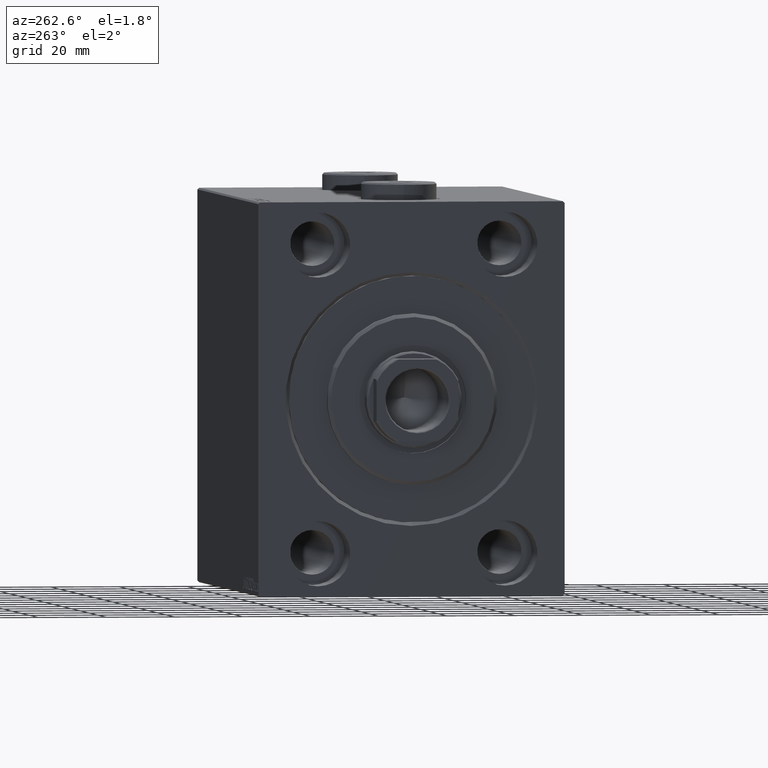
[diagram: clean part render]
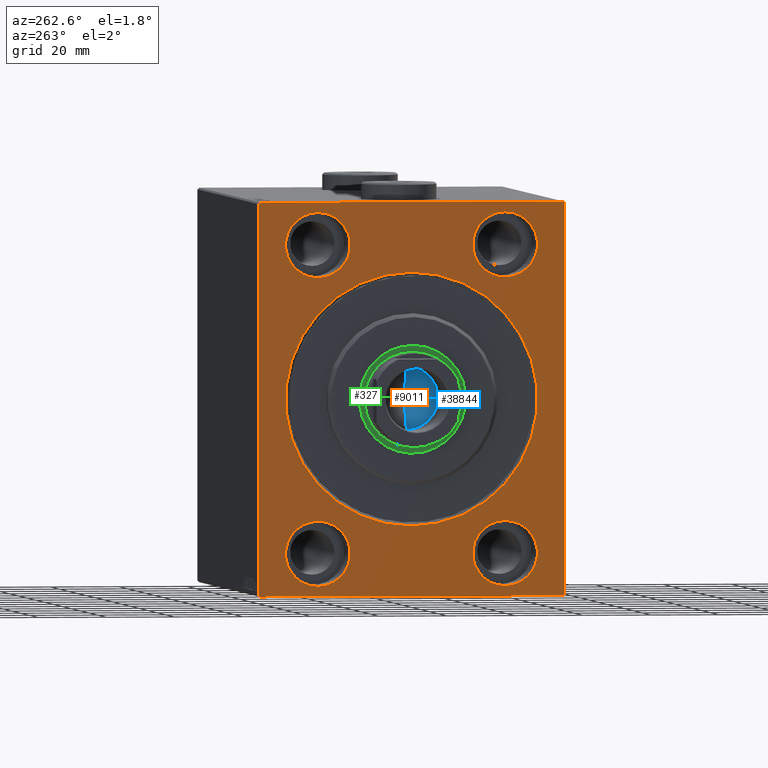
[diagram: same view with three faces highlighted in distinct colors, each labeled with its STEP entity id]
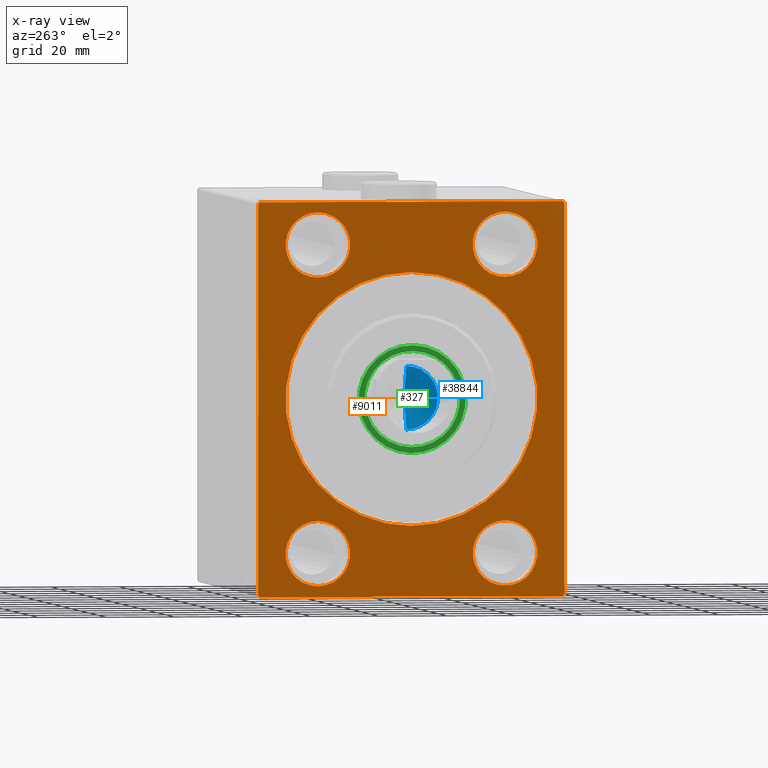
[diagram: x-ray of the same camera — body ghosted, the three highlighted faces saturated]
A machine part, auxiliary view with three faces highlighted in distinct colors.
The next image is the same camera in x-ray (body ghosted, the three faces saturated) — at least one of them is partly hidden behind the body in this view.
Their STEP definitions:

[orange] entity #9011 — the highlighted planar face has unit normal (1, 0, 0).
#83 = CARTESIAN_POINT ( 'NONE',  ( 0.000000000000000000, 44.50000000000000000, 57.50000000000000711 ) ) ;
#129 = EDGE_CURVE ( 'NONE', #12626, #38655, #5017, .T. ) ;
#213 = EDGE_CURVE ( 'NONE', #8205, #16908, #32219, .T. ) ;
#664 = CARTESIAN_POINT ( 'NONE',  ( 0.000000000000000000, 44.50000000000000000, 57.50000000000000711 ) ) ;
#972 = FACE_BOUND ( 'NONE', #11314, .T. ) ;
#1505 = ORIENTED_EDGE ( 'NONE', *, *, #37811, .T. ) ;
#1538 = EDGE_LOOP ( 'NONE', ( #39414, #43744, #23318, #11000, #45151, #24754, #13445, #22634 ) ) ;
#1888 = CARTESIAN_POINT ( 'NONE',  ( 0.000000000000000000, 27.49999999999998934, -44.99999999999998579 ) ) ;
#2262 = DIRECTION ( 'NONE',  ( -1.000000000000000000, 0.000000000000000000, 0.000000000000000000 ) ) ;
#2321 = DIRECTION ( 'NONE',  ( 0.000000000000000000, 0.000000000000000000, 1.000000000000000000 ) ) ;
#2555 = CARTESIAN_POINT ( 'NONE',  ( 0.000000000000000000, -45.00000000000000000, 57.00000000000002132 ) ) ;
#2706 = CARTESIAN_POINT ( 'NONE',  ( 0.000000000000000000, -27.50000000000000000, -44.99999999999998579 ) ) ;
#4007 = CARTESIAN_POINT ( 'NONE',  ( 0.000000000000000000, 0.000000000000000000, 37.00000000000006395 ) ) ;
#4414 = FACE_BOUND ( 'NONE', #23171, .T. ) ;
#5017 = LINE ( 'NONE', #664, #5155 ) ;
#5155 = VECTOR ( 'NONE', #8226, 1000.000000000000114 ) ;
#5700 = CIRCLE ( 'NONE', #21773, 9.500000000000001776 ) ;
#5869 = DIRECTION ( 'NONE',  ( 0.000000000000000000, 0.000000000000000000, 1.000000000000000000 ) ) ;
#6722 = EDGE_CURVE ( 'NONE', #25163, #38655, #40824, .T. ) ;
#7221 = CARTESIAN_POINT ( 'NONE',  ( 0.000000000000000000, -44.50000000000000000, -57.50000000000000711 ) ) ;
#7362 = DIRECTION ( 'NONE',  ( -1.000000000000000000, 0.000000000000000000, 0.000000000000000000 ) ) ;
#8034 = AXIS2_PLACEMENT_3D ( 'NONE', #1888, #33710, #30505 ) ;
#8128 = CARTESIAN_POINT ( 'NONE',  ( 0.000000000000000000, -27.49999999999998934, 54.50000000000000711 ) ) ;
#8205 = VERTEX_POINT ( 'NONE', #28984 ) ;
#8226 = DIRECTION ( 'NONE',  ( -0.000000000000000000, 0.7071067811865474617, -0.7071067811865474617 ) ) ;
#8778 = EDGE_CURVE ( 'NONE', #25163, #36953, #40735, .T. ) ;
#9011 = ADVANCED_FACE ( 'NONE', ( #35788, #43126, #22721, #4414, #972, #25947 ), #14951, .F. ) ;
#9040 = DIRECTION ( 'NONE',  ( 1.000000000000000000, 0.000000000000000000, 0.000000000000000000 ) ) ;
#9074 = AXIS2_PLACEMENT_3D ( 'NONE', #39692, #29594, #26165 ) ;
#9134 = DIRECTION ( 'NONE',  ( 0.000000000000000000, 0.000000000000000000, 1.000000000000000000 ) ) ;
#9237 = DIRECTION ( 'NONE',  ( 0.000000000000000000, 1.000000000000000000, 0.000000000000000000 ) ) ;
#9293 = DIRECTION ( 'NONE',  ( -1.000000000000000000, 0.000000000000000000, 0.000000000000000000 ) ) ;
#9368 = CARTESIAN_POINT ( 'NONE',  ( 0.000000000000000000, 27.50000000000001066, 45.00000000000000711 ) ) ;
#9538 = CARTESIAN_POINT ( 'NONE',  ( 0.000000000000000000, -27.50000000000000000, -54.49999999999998579 ) ) ;
#9563 = CARTESIAN_POINT ( 'NONE',  ( 0.000000000000000000, 27.50000000000001066, 54.50000000000000711 ) ) ;
#9639 = CIRCLE ( 'NONE', #35221, 9.500000000000001776 ) ;
#10361 = VERTEX_POINT ( 'NONE', #8128 ) ;
#11000 = ORIENTED_EDGE ( 'NONE', *, *, #129, .T. ) ;
#11314 = EDGE_LOOP ( 'NONE', ( #14347, #20321 ) ) ;
#11421 = DIRECTION ( 'NONE',  ( 0.000000000000000000, -1.000000000000000000, -1.541976423090495387E-16 ) ) ;
#11688 = DIRECTION ( 'NONE',  ( 0.000000000000000000, 0.000000000000000000, 1.000000000000000000 ) ) ;
#11952 = VECTOR ( 'NONE', #9237, 1000.000000000000000 ) ;
#12626 = VERTEX_POINT ( 'NONE', #83 ) ;
#12695 = DIRECTION ( 'NONE',  ( 0.000000000000000000, 0.000000000000000000, -1.000000000000000000 ) ) ;
#12864 = EDGE_LOOP ( 'NONE', ( #31864, #37898 ) ) ;
#13353 = VECTOR ( 'NONE', #16064, 1000.000000000000114 ) ;
#13445 = ORIENTED_EDGE ( 'NONE', *, *, #43350, .F. ) ;
#13882 = CIRCLE ( 'NONE', #8034, 9.500000000000001776 ) ;
#14069 = VERTEX_POINT ( 'NONE', #4007 ) ;
#14208 = VERTEX_POINT ( 'NONE', #22991 ) ;
#14347 = ORIENTED_EDGE ( 'NONE', *, *, #213, .F. ) ;
#14929 = VECTOR ( 'NONE', #37734, 1000.000000000000114 ) ;
#14951 = PLANE ( 'NONE',  #9074 ) ;
#15176 = EDGE_CURVE ( 'NONE', #14208, #39765, #34197, .T. ) ;
#15854 = DIRECTION ( 'NONE',  ( 0.000000000000000000, 0.000000000000000000, 1.000000000000000000 ) ) ;
#16064 = DIRECTION ( 'NONE',  ( -0.000000000000000000, 0.7071067811865474617, 0.7071067811865474617 ) ) ;
#16130 = CIRCLE ( 'NONE', #26380, 37.00000000000006395 ) ;
#16304 = AXIS2_PLACEMENT_3D ( 'NONE', #39408, #39191, #11688 ) ;
#16690 = DIRECTION ( 'NONE',  ( 0.000000000000000000, 0.000000000000000000, -1.000000000000000000 ) ) ;
#16791 = CIRCLE ( 'NONE', #41660, 9.500000000000001776 ) ;
#16908 = VERTEX_POINT ( 'NONE', #9538 ) ;
#16963 = CARTESIAN_POINT ( 'NONE',  ( 0.000000000000000000, 27.49999999999998934, -54.49999999999998579 ) ) ;
#17118 = EDGE_CURVE ( 'NONE', #37033, #39765, #37587, .T. ) ;
#17678 = CARTESIAN_POINT ( 'NONE',  ( 0.000000000000000000, 45.00000000000001421, -57.00000000000000711 ) ) ;
#17759 = AXIS2_PLACEMENT_3D ( 'NONE', #37318, #44647, #16690 ) ;
#19041 = EDGE_LOOP ( 'NONE', ( #39774, #35371 ) ) ;
#19332 = CARTESIAN_POINT ( 'NONE',  ( 0.000000000000000000, 0.000000000000000000, 0.000000000000000000 ) ) ;
#19366 = EDGE_CURVE ( 'NONE', #31311, #42765, #5700, .T. ) ;
#20321 = ORIENTED_EDGE ( 'NONE', *, *, #28539, .F. ) ;
#20518 = CARTESIAN_POINT ( 'NONE',  ( 0.000000000000000000, 27.50000000000001066, 35.50000000000000711 ) ) ;
#21434 = CIRCLE ( 'NONE', #17759, 37.00000000000006395 ) ;
#21530 = VECTOR ( 'NONE', #44975, 1000.000000000000000 ) ;
#21773 = AXIS2_PLACEMENT_3D ( 'NONE', #9368, #2262, #27227 ) ;
#22634 = ORIENTED_EDGE ( 'NONE', *, *, #17118, .T. ) ;
#22721 = FACE_BOUND ( 'NONE', #19041, .T. ) ;
#22959 = CARTESIAN_POINT ( 'NONE',  ( 0.000000000000000000, -27.49999999999998934, 45.00000000000000711 ) ) ;
#22982 = LINE ( 'NONE', #33052, #11952 ) ;
#22991 = CARTESIAN_POINT ( 'NONE',  ( 0.000000000000000000, -45.00000000000000000, 57.00000000000002132 ) ) ;
#23171 = EDGE_LOOP ( 'NONE', ( #44573, #44339 ) ) ;
#23318 = ORIENTED_EDGE ( 'NONE', *, *, #23485, .F. ) ;
#23388 = DIRECTION ( 'NONE',  ( -0.000000000000000000, -0.7071067811865474617, 0.7071067811865474617 ) ) ;
#23485 = EDGE_CURVE ( 'NONE', #12626, #25802, #40053, .T. ) ;
#23618 = VERTEX_POINT ( 'NONE', #37739 ) ;
#24039 = CARTESIAN_POINT ( 'NONE',  ( 0.000000000000000000, 27.49999999999998934, -35.49999999999998579 ) ) ;
#24754 = ORIENTED_EDGE ( 'NONE', *, *, #8778, .T. ) ;
#25091 = VECTOR ( 'NONE', #37608, 1000.000000000000000 ) ;
#25163 = VERTEX_POINT ( 'NONE', #17678 ) ;
#25414 = CARTESIAN_POINT ( 'NONE',  ( 0.000000000000000000, -27.49999999999998934, 35.50000000000000711 ) ) ;
#25786 = AXIS2_PLACEMENT_3D ( 'NONE', #27282, #33698, #2321 ) ;
#25802 = VERTEX_POINT ( 'NONE', #30282 ) ;
#25816 = EDGE_CURVE ( 'NONE', #35378, #10361, #34379, .T. ) ;
#25836 = EDGE_CURVE ( 'NONE', #37431, #28769, #13882, .T. ) ;
#25947 = FACE_OUTER_BOUND ( 'NONE', #1538, .T. ) ;
#26165 = DIRECTION ( 'NONE',  ( 0.000000000000000000, 0.000000000000000000, -1.000000000000000000 ) ) ;
#26377 = AXIS2_PLACEMENT_3D ( 'NONE', #2706, #33407, #9134 ) ;
#26380 = AXIS2_PLACEMENT_3D ( 'NONE', #19332, #9040, #12695 ) ;
#27227 = DIRECTION ( 'NONE',  ( 0.000000000000000000, 0.000000000000000000, 1.000000000000000000 ) ) ;
#27282 = CARTESIAN_POINT ( 'NONE',  ( 0.000000000000000000, 27.49999999999998934, -44.99999999999998579 ) ) ;
#27551 = CARTESIAN_POINT ( 'NONE',  ( 0.000000000000000000, -45.00000000000000000, 57.49999999999999289 ) ) ;
#27993 = CARTESIAN_POINT ( 'NONE',  ( 0.000000000000000000, 27.50000000000001066, 45.00000000000000711 ) ) ;
#28539 = EDGE_CURVE ( 'NONE', #16908, #8205, #16791, .T. ) ;
#28751 = CIRCLE ( 'NONE', #16304, 9.500000000000001776 ) ;
#28769 = VERTEX_POINT ( 'NONE', #24039 ) ;
#28882 = VECTOR ( 'NONE', #23388, 1000.000000000000114 ) ;
#28984 = CARTESIAN_POINT ( 'NONE',  ( 0.000000000000000000, -27.50000000000000000, -35.49999999999998579 ) ) ;
#29594 = DIRECTION ( 'NONE',  ( 1.000000000000000000, 0.000000000000000000, 0.000000000000000000 ) ) ;
#29918 = CARTESIAN_POINT ( 'NONE',  ( 0.000000000000000000, 44.49999999999998579, -57.50000000000000711 ) ) ;
#30057 = DIRECTION ( 'NONE',  ( -1.000000000000000000, 0.000000000000000000, 0.000000000000000000 ) ) ;
#30282 = CARTESIAN_POINT ( 'NONE',  ( 0.000000000000000000, -44.50000000000000000, 57.49999999999999289 ) ) ;
#30505 = DIRECTION ( 'NONE',  ( 0.000000000000000000, 0.000000000000000000, 1.000000000000000000 ) ) ;
#31311 = VERTEX_POINT ( 'NONE', #20518 ) ;
#31864 = ORIENTED_EDGE ( 'NONE', *, *, #37516, .F. ) ;
#32219 = CIRCLE ( 'NONE', #26377, 9.500000000000001776 ) ;
#32311 = DIRECTION ( 'NONE',  ( 0.000000000000000000, 0.000000000000000000, 1.000000000000000000 ) ) ;
#32353 = CIRCLE ( 'NONE', #25786, 9.500000000000001776 ) ;
#32416 = EDGE_CURVE ( 'NONE', #23618, #14069, #16130, .T. ) ;
#33052 = CARTESIAN_POINT ( 'NONE',  ( 0.000000000000000000, -45.00000000000000000, -57.50000000000000711 ) ) ;
#33407 = DIRECTION ( 'NONE',  ( -1.000000000000000000, 0.000000000000000000, 0.000000000000000000 ) ) ;
#33698 = DIRECTION ( 'NONE',  ( -1.000000000000000000, 0.000000000000000000, 0.000000000000000000 ) ) ;
#33710 = DIRECTION ( 'NONE',  ( -1.000000000000000000, 0.000000000000000000, 0.000000000000000000 ) ) ;
#33910 = CARTESIAN_POINT ( 'NONE',  ( 0.000000000000000000, -44.50000000000000000, -57.50000000000000711 ) ) ;
#34197 = LINE ( 'NONE', #27551, #21530 ) ;
#34379 = CIRCLE ( 'NONE', #37306, 9.500000000000001776 ) ;
#34977 = EDGE_CURVE ( 'NONE', #42765, #31311, #9639, .T. ) ;
#35221 = AXIS2_PLACEMENT_3D ( 'NONE', #27993, #9293, #5869 ) ;
#35371 = ORIENTED_EDGE ( 'NONE', *, *, #25816, .F. ) ;
#35378 = VERTEX_POINT ( 'NONE', #25414 ) ;
#35788 = FACE_BOUND ( 'NONE', #43417, .T. ) ;
#36953 = VERTEX_POINT ( 'NONE', #29918 ) ;
#37033 = VERTEX_POINT ( 'NONE', #7221 ) ;
#37306 = AXIS2_PLACEMENT_3D ( 'NONE', #22959, #30057, #15854 ) ;
#37318 = CARTESIAN_POINT ( 'NONE',  ( 0.000000000000000000, 0.000000000000000000, 0.000000000000000000 ) ) ;
#37383 = CARTESIAN_POINT ( 'NONE',  ( 0.000000000000000000, 45.00000000000000000, 56.99999999999997868 ) ) ;
#37431 = VERTEX_POINT ( 'NONE', #16963 ) ;
#37450 = EDGE_CURVE ( 'NONE', #14208, #25802, #37606, .T. ) ;
#37516 = EDGE_CURVE ( 'NONE', #28769, #37431, #32353, .T. ) ;
#37587 = LINE ( 'NONE', #33910, #28882 ) ;
#37606 = LINE ( 'NONE', #2555, #13353 ) ;
#37608 = DIRECTION ( 'NONE',  ( 0.000000000000000000, -1.206764157201257045E-16, 1.000000000000000000 ) ) ;
#37734 = DIRECTION ( 'NONE',  ( 0.000000000000000000, -0.7071067811865474617, -0.7071067811865474617 ) ) ;
#37739 = CARTESIAN_POINT ( 'NONE',  ( 0.000000000000000000, 4.531193156845213892E-15, -37.00000000000006395 ) ) ;
#37811 = EDGE_CURVE ( 'NONE', #14069, #23618, #21434, .T. ) ;
#37898 = ORIENTED_EDGE ( 'NONE', *, *, #25836, .F. ) ;
#38405 = ORIENTED_EDGE ( 'NONE', *, *, #32416, .T. ) ;
#38655 = VERTEX_POINT ( 'NONE', #37383 ) ;
#38833 = EDGE_CURVE ( 'NONE', #10361, #35378, #28751, .T. ) ;
#39191 = DIRECTION ( 'NONE',  ( -1.000000000000000000, 0.000000000000000000, 0.000000000000000000 ) ) ;
#39408 = CARTESIAN_POINT ( 'NONE',  ( 0.000000000000000000, -27.49999999999998934, 45.00000000000000711 ) ) ;
#39414 = ORIENTED_EDGE ( 'NONE', *, *, #15176, .F. ) ;
#39692 = CARTESIAN_POINT ( 'NONE',  ( 0.000000000000000000, 0.000000000000000000, 0.000000000000000000 ) ) ;
#39765 = VERTEX_POINT ( 'NONE', #43820 ) ;
#39774 = ORIENTED_EDGE ( 'NONE', *, *, #38833, .F. ) ;
#40053 = LINE ( 'NONE', #42813, #40912 ) ;
#40503 = CARTESIAN_POINT ( 'NONE',  ( 0.000000000000000000, 45.00000000000001421, -57.00000000000000711 ) ) ;
#40735 = LINE ( 'NONE', #40503, #14929 ) ;
#40824 = LINE ( 'NONE', #44255, #25091 ) ;
#40912 = VECTOR ( 'NONE', #11421, 1000.000000000000000 ) ;
#41660 = AXIS2_PLACEMENT_3D ( 'NONE', #42411, #7362, #32311 ) ;
#42411 = CARTESIAN_POINT ( 'NONE',  ( 0.000000000000000000, -27.50000000000000000, -44.99999999999998579 ) ) ;
#42765 = VERTEX_POINT ( 'NONE', #9563 ) ;
#42813 = CARTESIAN_POINT ( 'NONE',  ( 0.000000000000000000, 45.00000000000000000, 57.50000000000000711 ) ) ;
#43126 = FACE_BOUND ( 'NONE', #12864, .T. ) ;
#43350 = EDGE_CURVE ( 'NONE', #37033, #36953, #22982, .T. ) ;
#43417 = EDGE_LOOP ( 'NONE', ( #1505, #38405 ) ) ;
#43744 = ORIENTED_EDGE ( 'NONE', *, *, #37450, .T. ) ;
#43820 = CARTESIAN_POINT ( 'NONE',  ( 0.000000000000000000, -45.00000000000000000, -57.00000000000000711 ) ) ;
#44255 = CARTESIAN_POINT ( 'NONE',  ( 0.000000000000000000, 45.00000000000001421, -57.50000000000000711 ) ) ;
#44339 = ORIENTED_EDGE ( 'NONE', *, *, #19366, .F. ) ;
#44573 = ORIENTED_EDGE ( 'NONE', *, *, #34977, .F. ) ;
#44647 = DIRECTION ( 'NONE',  ( 1.000000000000000000, 0.000000000000000000, 0.000000000000000000 ) ) ;
#44975 = DIRECTION ( 'NONE',  ( 0.000000000000000000, 0.000000000000000000, -1.000000000000000000 ) ) ;
#45151 = ORIENTED_EDGE ( 'NONE', *, *, #6722, .F. ) ;

[blue] entity #38844 — the highlighted conical surface has half-angle 59 deg.
#190 = VERTEX_POINT ( 'NONE', #40529 ) ;
#2396 = AXIS2_PLACEMENT_3D ( 'NONE', #7804, #40102, #21774 ) ;
#4231 = ORIENTED_EDGE ( 'NONE', *, *, #19342, .F. ) ;
#4272 = VERTEX_POINT ( 'NONE', #41015 ) ;
#5002 = AXIS2_PLACEMENT_3D ( 'NONE', #16395, #41816, #10200 ) ;
#6865 = CARTESIAN_POINT ( 'NONE',  ( -9.249999999999994671, 1.132798289211300909E-15, 109.0000000000000142 ) ) ;
#7804 = CARTESIAN_POINT ( 'NONE',  ( 0.000000000000000000, 0.000000000000000000, 109.0000000000000142 ) ) ;
#9018 = CONICAL_SURFACE ( 'NONE', #2396, 9.249999999999994671, 1.029744258676652535 ) ;
#10100 = CIRCLE ( 'NONE', #5002, 9.249999999999994671 ) ;
#10200 = DIRECTION ( 'NONE',  ( 1.000000000000000000, 0.000000000000000000, 0.000000000000000000 ) ) ;
#15219 = ORIENTED_EDGE ( 'NONE', *, *, #27933, .T. ) ;
#16395 = CARTESIAN_POINT ( 'NONE',  ( 0.000000000000000000, 0.000000000000000000, 109.0000000000000142 ) ) ;
#19342 = EDGE_CURVE ( 'NONE', #4272, #38975, #37315, .T. ) ;
#20771 = EDGE_CURVE ( 'NONE', #190, #38975, #10100, .T. ) ;
#21774 = DIRECTION ( 'NONE',  ( 1.000000000000000000, 0.000000000000000000, 0.000000000000000000 ) ) ;
#27933 = EDGE_CURVE ( 'NONE', #4272, #190, #42147, .T. ) ;
#28354 = CARTESIAN_POINT ( 'NONE',  ( 9.249999999999994671, 0.000000000000000000, 109.0000000000000142 ) ) ;
#28366 = VECTOR ( 'NONE', #34311, 1000.000000000000000 ) ;
#31817 = DIRECTION ( 'NONE',  ( -0.8571673007021113344, 1.049727191138617463E-16, 0.5150380749100558209 ) ) ;
#32979 = FACE_OUTER_BOUND ( 'NONE', #35118, .T. ) ;
#34311 = DIRECTION ( 'NONE',  ( 0.8571673007021113344, 0.000000000000000000, 0.5150380749100558209 ) ) ;
#35118 = EDGE_LOOP ( 'NONE', ( #4231, #15219, #38893 ) ) ;
#37086 = CARTESIAN_POINT ( 'NONE',  ( 9.249999999999994671, 0.000000000000000000, 109.0000000000000142 ) ) ;
#37315 = LINE ( 'NONE', #37086, #28366 ) ;
#38844 = ADVANCED_FACE ( 'NONE', ( #32979 ), #9018, .F. ) ;
#38893 = ORIENTED_EDGE ( 'NONE', *, *, #20771, .T. ) ;
#38975 = VERTEX_POINT ( 'NONE', #28354 ) ;
#40102 = DIRECTION ( 'NONE',  ( -0.000000000000000000, -0.000000000000000000, 1.000000000000000000 ) ) ;
#40529 = CARTESIAN_POINT ( 'NONE',  ( -9.249999999999994671, 1.132798289211300909E-15, 109.0000000000000142 ) ) ;
#41015 = CARTESIAN_POINT ( 'NONE',  ( -6.793016015247754405E-15, 0.000000000000000000, 103.4420392739950643 ) ) ;
#41816 = DIRECTION ( 'NONE',  ( -0.000000000000000000, -0.000000000000000000, 1.000000000000000000 ) ) ;
#42147 = LINE ( 'NONE', #6865, #43846 ) ;
#43846 = VECTOR ( 'NONE', #31817, 1000.000000000000000 ) ;

[green] entity #327 — the highlighted planar face has unit normal (-1, 0, 0).
#327 = ADVANCED_FACE ( 'NONE', ( #1013, #6820 ), #9804, .T. ) ;
#754 = DIRECTION ( 'NONE',  ( 1.000000000000000000, 0.000000000000000000, 0.000000000000000000 ) ) ;
#1013 = FACE_BOUND ( 'NONE', #6461, .T. ) ;
#4270 = VERTEX_POINT ( 'NONE', #34564 ) ;
#4776 = DIRECTION ( 'NONE',  ( 1.000000000000000000, 0.000000000000000000, 0.000000000000000000 ) ) ;
#4928 = DIRECTION ( 'NONE',  ( 0.000000000000000000, 0.000000000000000000, -1.000000000000000000 ) ) ;
#6461 = EDGE_LOOP ( 'NONE', ( #35912, #23890 ) ) ;
#6812 = VERTEX_POINT ( 'NONE', #14894 ) ;
#6820 = FACE_OUTER_BOUND ( 'NONE', #18777, .T. ) ;
#8285 = DIRECTION ( 'NONE',  ( 0.000000000000000000, 0.000000000000000000, -1.000000000000000000 ) ) ;
#9804 = PLANE ( 'NONE',  #22710 ) ;
#11147 = ORIENTED_EDGE ( 'NONE', *, *, #32269, .T. ) ;
#11733 = AXIS2_PLACEMENT_3D ( 'NONE', #34672, #754, #21387 ) ;
#14894 = CARTESIAN_POINT ( 'NONE',  ( 1.500000000000000000, 1.928818708657080950E-15, -15.75000000000000000 ) ) ;
#15294 = DIRECTION ( 'NONE',  ( 0.000000000000000000, 0.000000000000000000, -1.000000000000000000 ) ) ;
#15791 = VERTEX_POINT ( 'NONE', #34094 ) ;
#17348 = AXIS2_PLACEMENT_3D ( 'NONE', #32337, #36452, #8285 ) ;
#17973 = EDGE_CURVE ( 'NONE', #4270, #15791, #31245, .T. ) ;
#18777 = EDGE_LOOP ( 'NONE', ( #22175, #11147 ) ) ;
#19665 = CIRCLE ( 'NONE', #11733, 14.00000000000000178 ) ;
#20331 = CARTESIAN_POINT ( 'NONE',  ( 1.500000000000000000, 0.000000000000000000, 0.000000000000000000 ) ) ;
#21307 = AXIS2_PLACEMENT_3D ( 'NONE', #43928, #4776, #15294 ) ;
#21387 = DIRECTION ( 'NONE',  ( 0.000000000000000000, 0.000000000000000000, -1.000000000000000000 ) ) ;
#22175 = ORIENTED_EDGE ( 'NONE', *, *, #33204, .T. ) ;
#22710 = AXIS2_PLACEMENT_3D ( 'NONE', #20331, #28960, #23789 ) ;
#23789 = DIRECTION ( 'NONE',  ( 0.000000000000000000, 0.000000000000000000, -1.000000000000000000 ) ) ;
#23890 = ORIENTED_EDGE ( 'NONE', *, *, #17973, .F. ) ;
#24189 = CIRCLE ( 'NONE', #41761, 15.75000000000000000 ) ;
#26488 = EDGE_CURVE ( 'NONE', #15791, #4270, #19665, .T. ) ;
#28520 = DIRECTION ( 'NONE',  ( 1.000000000000000000, 0.000000000000000000, 0.000000000000000000 ) ) ;
#28960 = DIRECTION ( 'NONE',  ( 1.000000000000000000, 0.000000000000000000, 0.000000000000000000 ) ) ;
#29201 = CARTESIAN_POINT ( 'NONE',  ( 1.500000000000000000, 0.000000000000000000, 0.000000000000000000 ) ) ;
#31245 = CIRCLE ( 'NONE', #17348, 14.00000000000000178 ) ;
#31327 = VERTEX_POINT ( 'NONE', #42061 ) ;
#32269 = EDGE_CURVE ( 'NONE', #6812, #31327, #24189, .T. ) ;
#32337 = CARTESIAN_POINT ( 'NONE',  ( 1.499999999999999556, 0.000000000000000000, 0.000000000000000000 ) ) ;
#33204 = EDGE_CURVE ( 'NONE', #31327, #6812, #40320, .T. ) ;
#34094 = CARTESIAN_POINT ( 'NONE',  ( 1.499999999999999556, 0.000000000000000000, -14.00000000000000178 ) ) ;
#34564 = CARTESIAN_POINT ( 'NONE',  ( 1.499999999999999556, 1.714505518806294441E-15, 14.00000000000000178 ) ) ;
#34672 = CARTESIAN_POINT ( 'NONE',  ( 1.499999999999999556, 0.000000000000000000, 0.000000000000000000 ) ) ;
#35912 = ORIENTED_EDGE ( 'NONE', *, *, #26488, .F. ) ;
#36452 = DIRECTION ( 'NONE',  ( 1.000000000000000000, 0.000000000000000000, 0.000000000000000000 ) ) ;
#40320 = CIRCLE ( 'NONE', #21307, 15.75000000000000000 ) ;
#41761 = AXIS2_PLACEMENT_3D ( 'NONE', #29201, #28520, #4928 ) ;
#42061 = CARTESIAN_POINT ( 'NONE',  ( 1.500000000000000000, 0.000000000000000000, 15.75000000000000000 ) ) ;
#43928 = CARTESIAN_POINT ( 'NONE',  ( 1.500000000000000000, 0.000000000000000000, 0.000000000000000000 ) ) ;